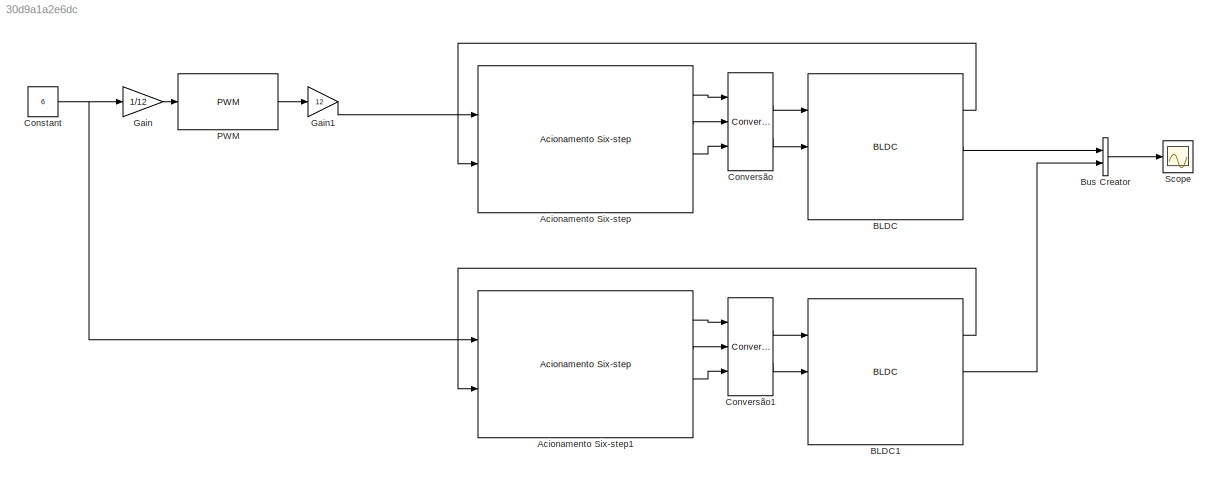
MODEL slx_30d9a1a2e6dc
KIND model
BLOCK [Reference] Acionamento Six-step  REF=BLDC/Acionamento Six-step
  P = 8
  Ports = [2, 4]
  SourceBlock = BLDC/Acionamento Six-step
  SourceType = Acionamento six-step
BLOCK [Reference] Acionamento Six-step1  REF=BLDC/Acionamento Six-step
  P = 8
  Ports = [2, 4]
  SourceBlock = BLDC/Acionamento Six-step
  SourceType = Acionamento six-step
BLOCK [Reference] BLDC  REF=BLDC/BLDC
  F_slip = 0
  F_stick = 0
  J = 1.39e-6
  Kd = 0
  Ke = 15.7e-3/1.19
  Kt = 15.7e-3/1.19
  L = 2.04/2000
  P = 8
  Ports = [3, 3]
  R = 10.1/2
  SourceBlock = BLDC/BLDC
  SourceType = Simulador de um motor BLDC
  default_fcem = on
  fcem_a = fcem_a
  fcem_b = fcem_b
  fcem_c = fcem_c
BLOCK [Reference] BLDC1  REF=BLDC/BLDC
  F_slip = 0
  F_stick = 0
  J = 1.39e-6
  Kd = 0
  Ke = 15.7e-3/1.19
  Kt = 15.7e-3/1.19
  L = 2.04/2000
  P = 8
  Ports = [3, 3]
  R = 10.1/2
  SourceBlock = BLDC/BLDC
  SourceType = Simulador de um motor BLDC
  default_fcem = on
  fcem_a = fcem_a
  fcem_b = fcem_b
  fcem_c = fcem_c
BLOCK [BusCreator] Bus Creator
  DisplayOption = bar
  Inputs = 2
  Ports = [2, 1]
BLOCK [Constant] Constant
  Value = 6
BLOCK [Reference] Conversão  REF=BLDC/Conversão
  Ports = [3, 2]
  SourceBlock = BLDC/Conversão
  SourceType = SubSystem
BLOCK [Reference] Conversão1  REF=BLDC/Conversão
  Ports = [3, 2]
  SourceBlock = BLDC/Conversão
  SourceType = SubSystem
BLOCK [Gain] Gain
  Gain = 1/12
  OutDataTypeStr = Inherit: Inherit via internal rule
  ParamDataTypeStr = Inherit: Inherit via internal rule
  SaturateOnIntegerOverflow = off
BLOCK [Gain] Gain1
  Gain = 12
  OutDataTypeStr = Inherit: Inherit via internal rule
  ParamDataTypeStr = Inherit: Inherit via internal rule
  SaturateOnIntegerOverflow = off
BLOCK [Reference] PWM  REF=Tools/PWM
  Ports = [1, 1]
  SourceBlock = Tools/PWM
  f = 10000
BLOCK [Scope] Scope
  DataFormat = StructureWithTime
  Floating = off
  LimitDataPoints = off
  NumInputPorts = 1
  Ports = [1]
  SampleTime = 0
  SaveName = ScopeData1
  ShowLegends = off
LINE Acionamento Six-step1:1 -> Conversão1:1
LINE Acionamento Six-step1:2 -> Conversão1:2
LINE Acionamento Six-step1:3 -> Conversão1:3
LINE Acionamento Six-step:1 -> Conversão:1
LINE Acionamento Six-step:2 -> Conversão:2
LINE Acionamento Six-step:3 -> Conversão:3
LINE BLDC1:1 -> Acionamento Six-step1:2
LINE BLDC1:2 -> Bus Creator:2
LINE BLDC:1 -> Acionamento Six-step:2
LINE BLDC:2 -> Bus Creator:1
LINE Bus Creator:1 -> Scope:1
NET Constant:1 -> Acionamento Six-step1:1, Gain:1
LINE Conversão1:1 -> BLDC1:1
LINE Conversão1:2 -> BLDC1:2
LINE Conversão:1 -> BLDC:1
LINE Conversão:2 -> BLDC:2
LINE Gain1:1 -> Acionamento Six-step:1
LINE Gain:1 -> PWM:1
LINE PWM:1 -> Gain1:1
note: NET lines group one-source signal fan-out (src -> all destinations, sorted); 1:1 wires keep LINE
